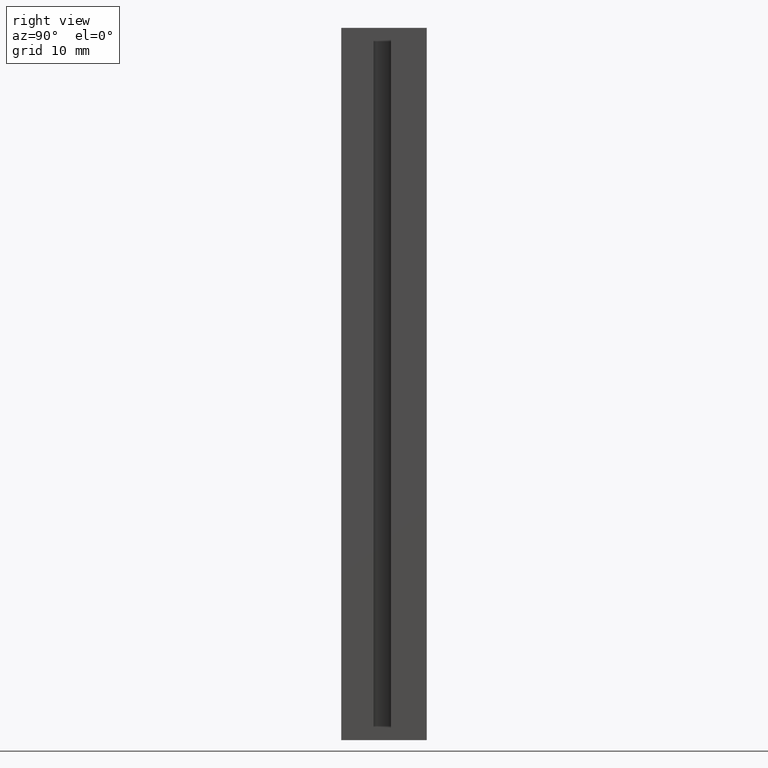
[diagram: clean part render]
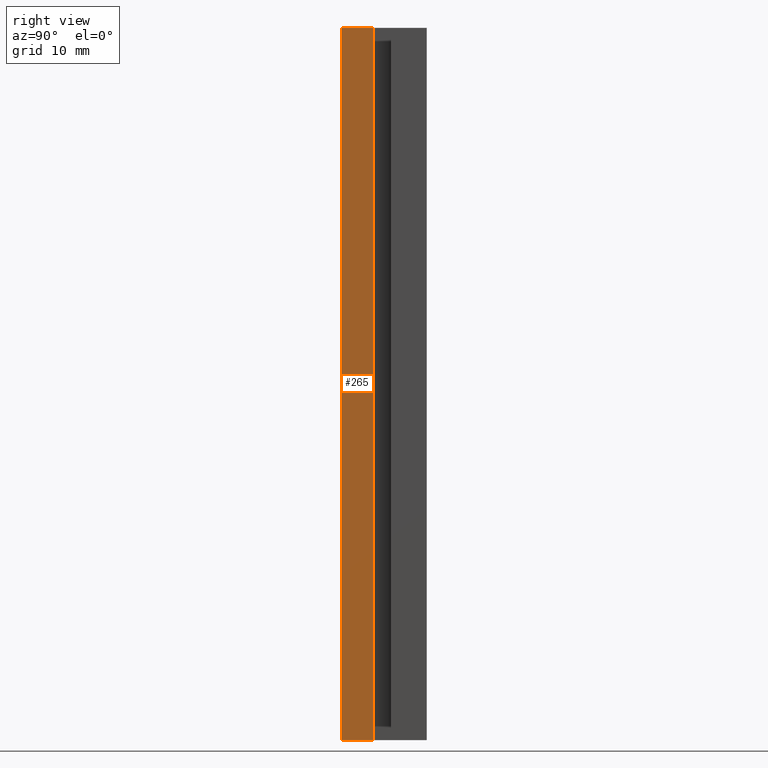
[diagram: same view with one face highlighted and labeled with its STEP entity id]
A machine part, right view. The second image highlights one B-rep face of the part: STEP entity #265.
In plain terms, the highlighted planar face has unit normal (1, 0, 0).
Its self-contained STEP definition (entity closure, byte-faithful):
#19=FACE_OUTER_BOUND('',#33,.T.);
#33=EDGE_LOOP('',(#191,#192,#193,#194));
#55=LINE('',#384,#91);
#56=LINE('',#387,#92);
#57=LINE('',#389,#93);
#58=LINE('',#390,#94);
#91=VECTOR('',#313,100.);
#92=VECTOR('',#316,4.5);
#93=VECTOR('',#317,4.5);
#94=VECTOR('',#318,100.);
#123=VERTEX_POINT('',#380);
#124=VERTEX_POINT('',#382);
#125=VERTEX_POINT('',#386);
#126=VERTEX_POINT('',#388);
#151=EDGE_CURVE('',#123,#124,#55,.T.);
#152=EDGE_CURVE('',#123,#125,#56,.T.);
#153=EDGE_CURVE('',#126,#124,#57,.T.);
#154=EDGE_CURVE('',#125,#126,#58,.T.);
#191=ORIENTED_EDGE('',*,*,#152,.F.);
#192=ORIENTED_EDGE('',*,*,#151,.T.);
#193=ORIENTED_EDGE('',*,*,#153,.F.);
#194=ORIENTED_EDGE('',*,*,#154,.F.);
#251=PLANE('',#281);
#265=ADVANCED_FACE('',(#19),#251,.T.);
#281=AXIS2_PLACEMENT_3D('',#385,#314,#315);
#313=DIRECTION('',(0.,0.,1.));
#314=DIRECTION('center_axis',(1.,0.,0.));
#315=DIRECTION('ref_axis',(0.,1.,0.));
#316=DIRECTION('',(0.,-1.,0.));
#317=DIRECTION('',(0.,1.,0.));
#318=DIRECTION('',(0.,0.,1.));
#380=CARTESIAN_POINT('',(8.,-1.25,0.));
#382=CARTESIAN_POINT('',(8.,-1.25,100.));
#384=CARTESIAN_POINT('',(8.,-1.25,0.));
#385=CARTESIAN_POINT('Origin',(8.,-5.75,0.));
#386=CARTESIAN_POINT('',(8.,-5.75,0.));
#387=CARTESIAN_POINT('',(8.,-1.25,0.));
#388=CARTESIAN_POINT('',(8.,-5.75,100.));
#389=CARTESIAN_POINT('',(8.,-1.25,100.));
#390=CARTESIAN_POINT('',(8.,-5.75,0.));